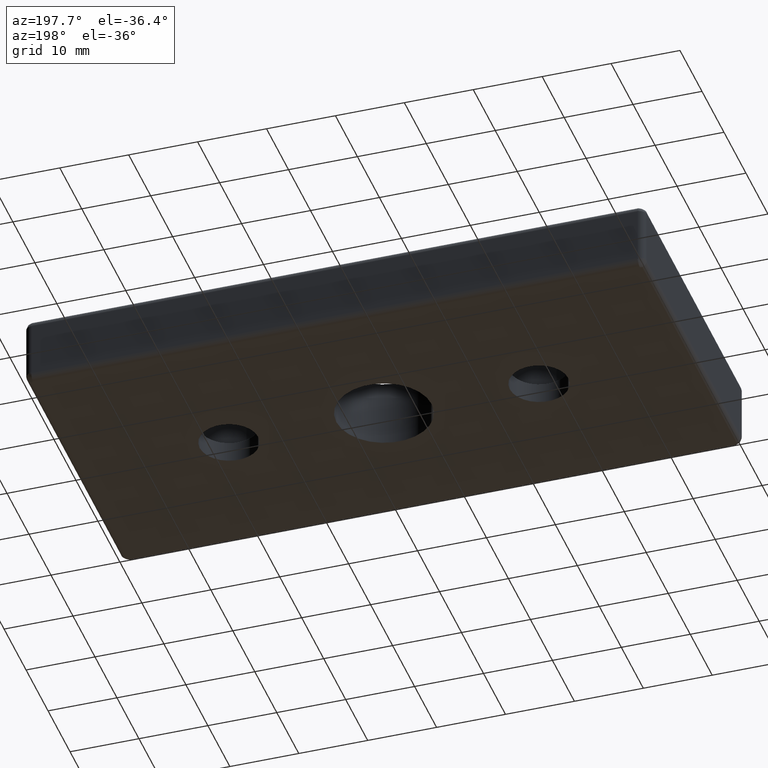
[diagram: clean part render]
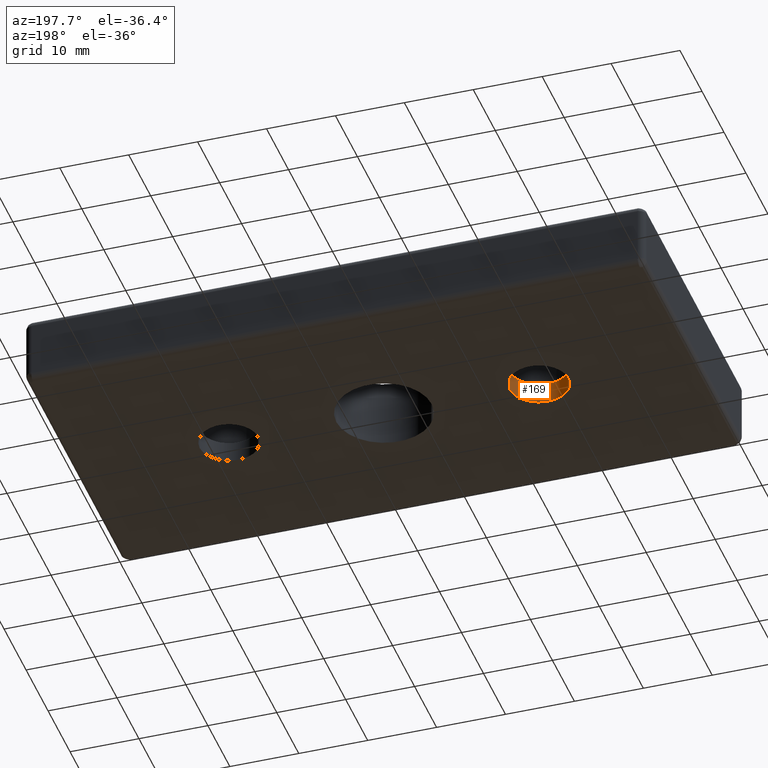
[diagram: same view with one face highlighted and labeled with its STEP entity id]
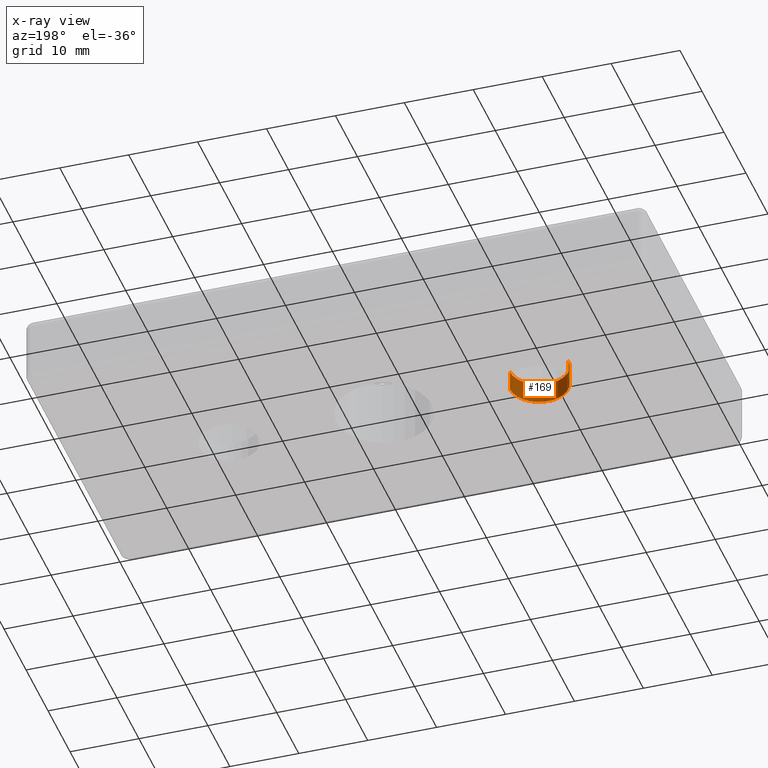
[diagram: x-ray of the same camera — body ghosted, the highlighted face saturated]
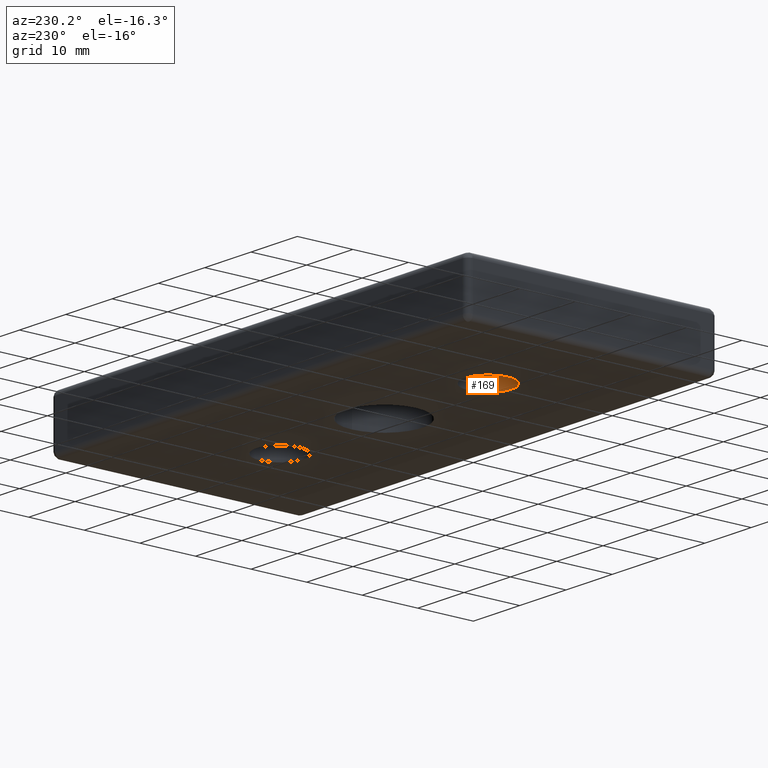
[diagram: same view with one face highlighted and labeled with its STEP entity id]
A machine part, auxiliary view. The second image highlights one B-rep face of the part: STEP entity #169.
The next image is the same camera in x-ray: the body ghosted, the highlighted face saturated — about 0% of this face is hidden behind the body in this view.
A second angle (auxiliary view) of the same face is appended — the face is thin or edge-on in the first view.
In plain terms, the highlighted cylindrical surface (edge-blend (fillet) strip) has radius 4.25 mm, axis along (0, 0, 1).
Its self-contained STEP definition (entity closure, byte-faithful):
#128=CARTESIAN_POINT('',(-67.207106781186496,0.0,-0.292893228813440));
#129=DIRECTION('',(0.0,0.0,1.0));
#130=DIRECTION('',(0.0,1.0,0.0));
#131=AXIS2_PLACEMENT_3D('',#128,#129,#130);
#132=CYLINDRICAL_SURFACE('',#131,4.249999999999997);
#133=CARTESIAN_POINT('',(-62.957106781186489,0.0,-0.292893218813443));
#134=VERTEX_POINT('',#133);
#135=CARTESIAN_POINT('',(-71.457106781186496,0.0,-0.292893218813443));
#136=VERTEX_POINT('',#135);
#137=CARTESIAN_POINT('',(-67.207106781186496,0.0,-0.292893218813443));
#138=DIRECTION('',(0.0,0.0,-1.0));
#139=DIRECTION('',(-1.0,0.0,0.0));
#140=AXIS2_PLACEMENT_3D('',#137,#138,#139);
#141=CIRCLE('',#140,4.249999999999997);
#142=EDGE_CURVE('',#134,#136,#141,.T.);
#143=ORIENTED_EDGE('',*,*,#142,.T.);
#144=CARTESIAN_POINT('',(-71.457106781186496,0.0,2.707106781186546));
#145=VERTEX_POINT('',#144);
#146=CARTESIAN_POINT('',(-71.457106781186496,0.0,-0.292893218813434));
#147=DIRECTION('',(0.0,0.0,1.0));
#148=VECTOR('',#147,2.999999999999981);
#149=LINE('',#146,#148);
#150=EDGE_CURVE('',#136,#145,#149,.T.);
#151=ORIENTED_EDGE('',*,*,#150,.T.);
#152=CARTESIAN_POINT('',(-62.957106781186489,0.0,2.707106781186546));
#153=VERTEX_POINT('',#152);
#154=CARTESIAN_POINT('',(-67.207106781186496,0.0,2.707106781186546));
#155=DIRECTION('',(0.0,0.0,1.0));
#156=DIRECTION('',(-1.0,0.0,0.0));
#157=AXIS2_PLACEMENT_3D('',#154,#155,#156);
#158=CIRCLE('',#157,4.249999999999997);
#159=EDGE_CURVE('',#145,#153,#158,.T.);
#160=ORIENTED_EDGE('',*,*,#159,.T.);
#161=CARTESIAN_POINT('',(-62.957106781186489,0.0,-0.292893218813434));
#162=DIRECTION('',(0.0,0.0,1.0));
#163=VECTOR('',#162,2.999999999999981);
#164=LINE('',#161,#163);
#165=EDGE_CURVE('',#134,#153,#164,.T.);
#166=ORIENTED_EDGE('',*,*,#165,.F.);
#167=EDGE_LOOP('',(#143,#151,#160,#166));
#168=FACE_OUTER_BOUND('',#167,.T.);
#169=ADVANCED_FACE('',(#168),#132,.F.);